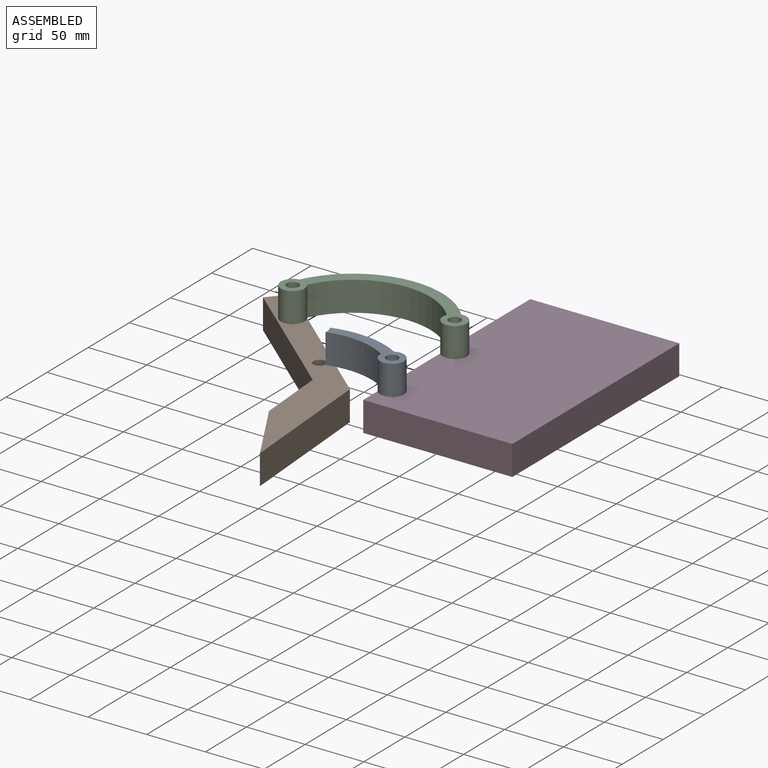
[diagram: assembled view]
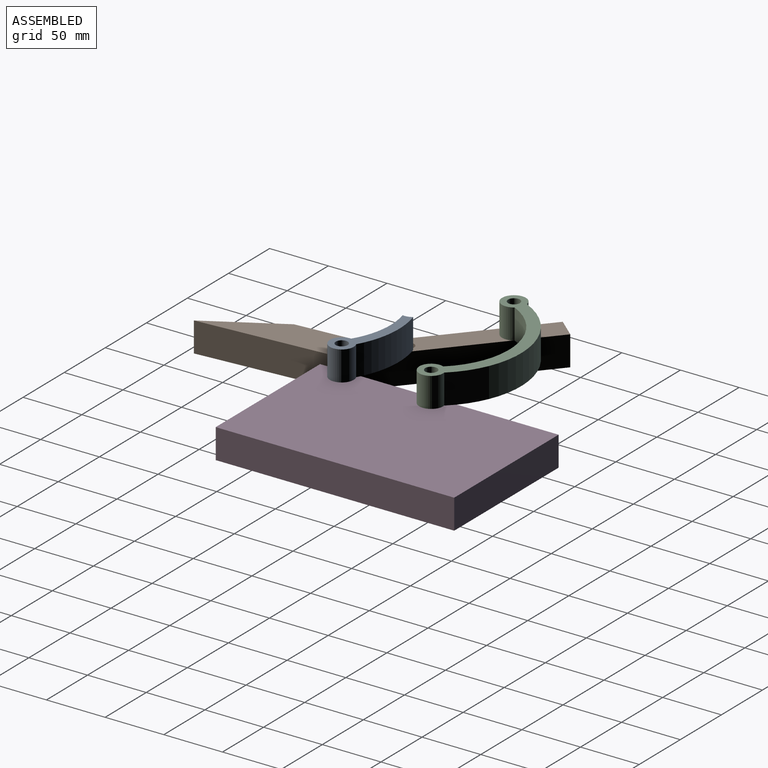
[diagram: assembled view, second angle]
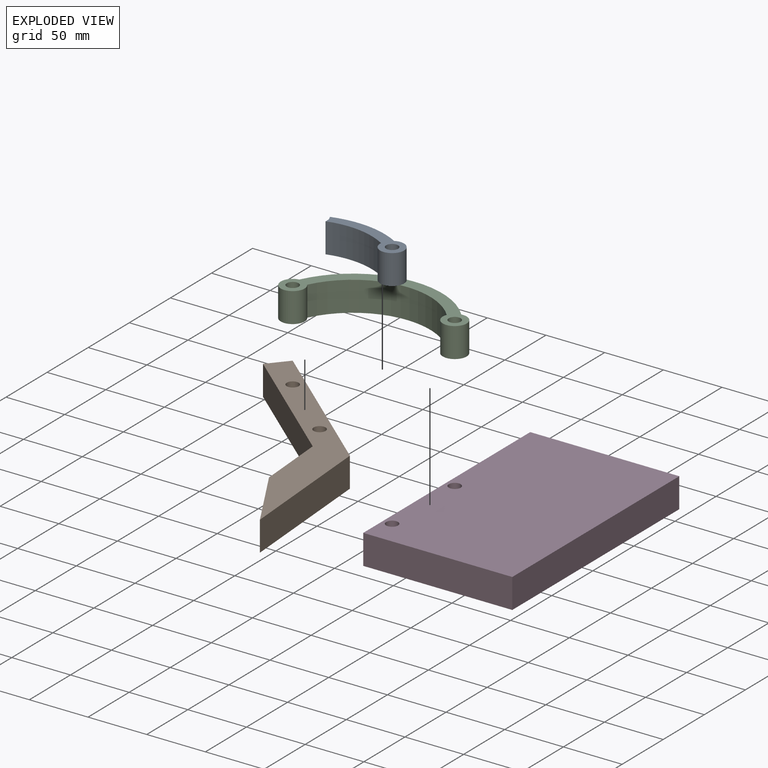
[diagram: exploded view]
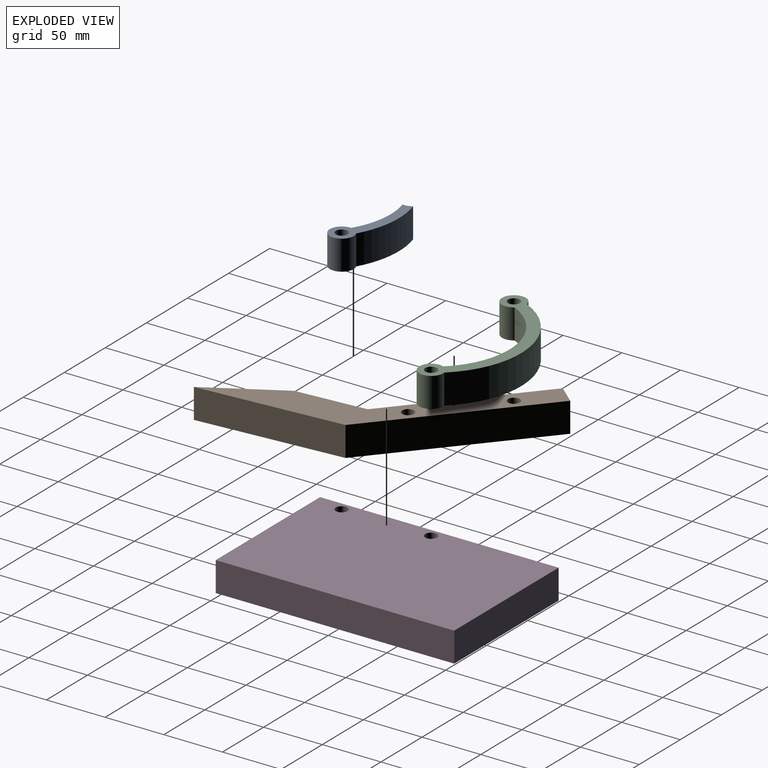
[diagram: exploded view, second angle]
ASSEMBLY  parts=4 mates=3
PART A: 7 faces, bbox 40.9x71.2x25.4 mm
  f0: cylinder r=66.04mm len=46.32mm, axis (0,0,-1), area 1380.5mm2, adj f1,f3,f5,f6
  f1: cylinder r=10.16mm len=25.4mm, axis (0,0,-1), area 1360.6mm2, adj f0,f2,f5,f6
  f2: cylinder r=76.2mm len=51.93mm, axis (0,0,-1), area 1566mm2, adj f1,f3,f5,f6
  f3: cylinder r=10.16mm len=25.4mm, axis (0,0,-1), area 208mm2, adj f0,f2,f5,f6
  f4: cylinder r=5.08mm len=25.4mm, axis (0,0,-1), area 810.7mm2, adj f5,f6
  f5: plane 71.18x40.86mm, normal (0,0,1), area 741.5mm2, adj f0,f1,f2,f3,f4
  f6: plane 71.18x40.86mm, normal (0,0,-1), area 741.5mm2, adj f0,f1,f2,f3,f4
PART B: 10 faces, bbox 129.6x237.5x25.4 mm
  f0: plane 99.38x99.38mm, normal (-0.71,-0.71,0), area 3569.8mm2, adj f1,f7,f8,f9
  f1: plane 59.75x25.4mm, normal (-1,0,0), area 1517.7mm2, adj f0,f2,f8,f9
  f2: plane 63.29x30.21mm, normal (-0.9,-0.43,0), area 1781.2mm2, adj f1,f3,f8,f9
  f3: plane 123.04x25.4mm, normal (1,0,0), area 3125.1mm2, adj f2,f4,f8,f9
  f4: plane 114.48x114.48mm, normal (0.71,0.71,0), area 4112.4mm2, adj f3,f7,f8,f9
  f5: cylinder r=5.08mm len=25.4mm, axis (0,0,-1), area 810.7mm2, adj f8,f9
  f6: cylinder r=5.08mm len=25.4mm, axis (0,0,-1), area 810.7mm2, adj f8,f9
  f7: plane 25.4x15.1mm, normal (-0.71,0.71,0), area 542.6mm2, adj f0,f4,f8,f9
  f8: plane 237.52x129.59mm, normal (0,0,1), area 5829mm2, adj f0,f1,f2,f3,f4,f5,f6,f7
  f9: plane 237.52x129.59mm, normal (0,0,-1), area 5829mm2, adj f0,f1,f2,f3,f4,f5,f6,f7
PART C: 8 faces, bbox 133.7x86.4x25.4 mm
  f0: cylinder r=66.04mm len=97.62mm, axis (0,0,-1), area 3271.5mm2, adj f1,f4,f6,f7
  f1: cylinder r=10.16mm len=25.4mm, axis (0,0,-1), area 1350.6mm2, adj f0,f2,f6,f7
  f2: cylinder r=76.2mm len=113.31mm, axis (0,0,-1), area 3809.2mm2, adj f1,f4,f6,f7
  f3: cylinder r=5.08mm len=25.4mm, axis (0,0,-1), area 810.7mm2, adj f6,f7
  f4: cylinder r=10.16mm len=25.4mm, axis (0,0,-1), area 1350.6mm2, adj f0,f2,f6,f7
  f5: cylinder r=5.08mm len=25.4mm, axis (0,0,-1), area 810.7mm2, adj f6,f7
  f6: plane 133.71x86.36mm, normal (0,0,1), area 1883.8mm2, adj f0,f1,f2,f3,f4,f5
  f7: plane 133.71x86.36mm, normal (0,0,-1), area 1883.8mm2, adj f0,f1,f2,f3,f4,f5
PART D: 8 faces, bbox 127x203.2x25.4 mm
  f0: plane 203.2x25.4mm, normal (-1,0,0), area 5161.3mm2, adj f1,f4,f6,f7
  f1: plane 127x25.4mm, normal (0,-1,0), area 3225.8mm2, adj f0,f2,f6,f7
  f2: plane 203.2x25.4mm, normal (1,0,0), area 5161.3mm2, adj f1,f4,f6,f7
  f3: cylinder r=5.08mm len=25.4mm, axis (0,0,-1), area 810.7mm2, adj f6,f7
  f4: plane 127x25.4mm, normal (0,1,0), area 3225.8mm2, adj f0,f2,f6,f7
  f5: cylinder r=5.08mm len=25.4mm, axis (0,0,-1), area 810.7mm2, adj f6,f7
  f6: plane 203.2x127mm, normal (0,0,1), area 25644.3mm2, adj f0,f1,f2,f3,f4,f5
  f7: plane 203.2x127mm, normal (0,0,-1), area 25644.3mm2, adj f0,f1,f2,f3,f4,f5
PLACE A rot(axis=(0,0,-1),126.6deg) t=(-155.31,-46.49,39.72)mm
PLACE B rot(axis=(0,0,1),4.3deg) t=(-175.92,-89.56,14.32)mm
PLACE C rot(axis=(0,0,-1),18.8deg) t=(-162.93,-42.2,39.72)mm
PLACE D t=(-64.52,5.09,14.32)mm fixed
MATE revolute B.f5 <-> C.f3  axis (0,0,1) through (-245.97,-13.9,39.72)mm
MATE revolute C.f1 <-> D.f5  axis (0,0,-1) through (-120.19,3.66,39.72)mm
MATE revolute A.f4 <-> D.f3  axis (0,0,-1) through (-120.19,-72.54,39.72)mm
